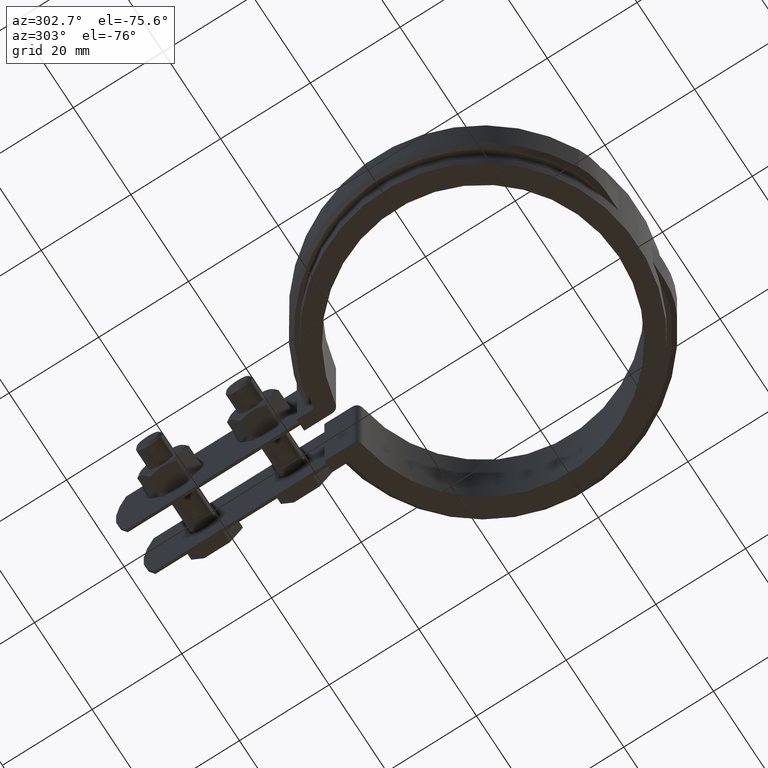
[diagram: clean part render]
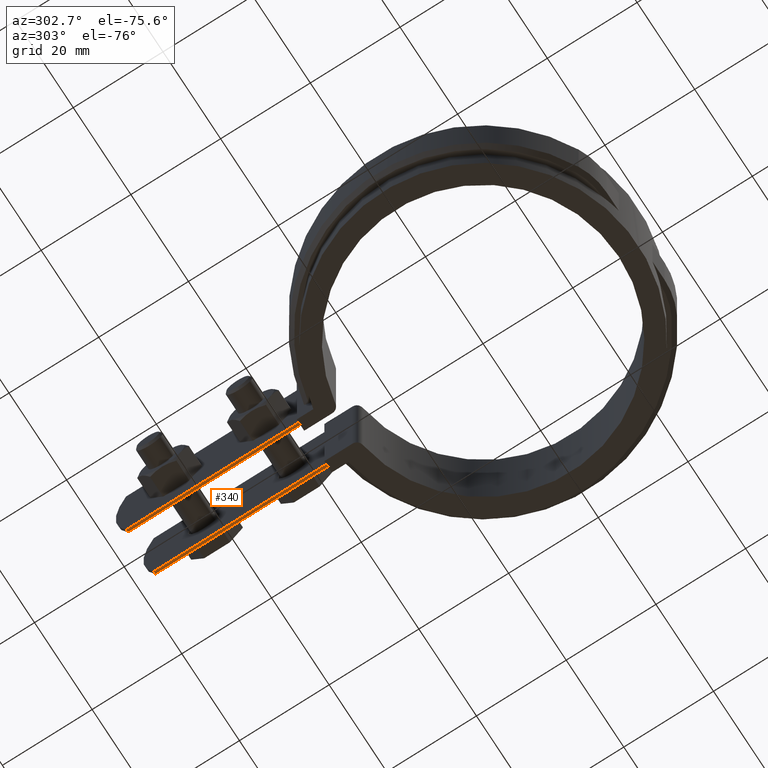
[diagram: same view with one face highlighted and labeled with its STEP entity id]
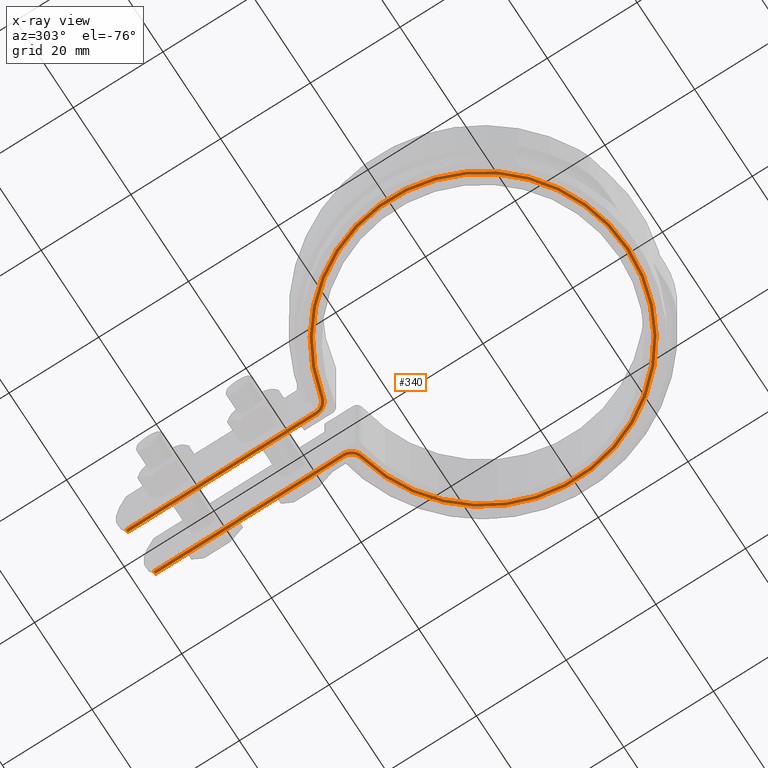
[diagram: x-ray of the same camera — body ghosted, the highlighted face saturated]
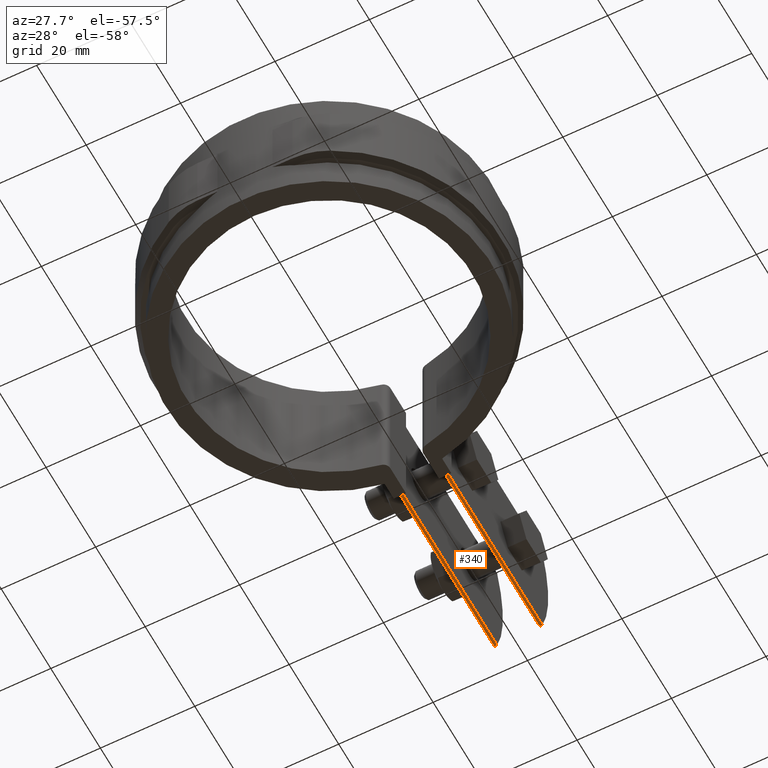
[diagram: same view with one face highlighted and labeled with its STEP entity id]
A machine part, auxiliary view. The second image highlights one B-rep face of the part: STEP entity #340.
The next image is the same camera in x-ray: the body ghosted, the highlighted face saturated — about 0% of this face is hidden behind the body in this view.
A second angle (auxiliary view) of the same face is appended — the face is thin or edge-on in the first view.
In plain terms, the highlighted planar face has unit normal (0, 0, 1).
Its self-contained STEP definition (entity closure, byte-faithful):
#340 = ADVANCED_FACE( '', ( #575 ), #576, .F. );
#575 = FACE_OUTER_BOUND( '', #1090, .T. );
#576 = PLANE( '', #1091 );
#1090 = EDGE_LOOP( '', ( #2251, #2252, #2253, #2254, #2255, #2256, #2257, #2258, #2259, #2260, #2261, #2262 ) );
#1091 = AXIS2_PLACEMENT_3D( '', #2263, #2264, #2265 );
#2251 = ORIENTED_EDGE( '', *, *, #4545, .F. );
#2252 = ORIENTED_EDGE( '', *, *, #4431, .F. );
#2253 = ORIENTED_EDGE( '', *, *, #4546, .F. );
#2254 = ORIENTED_EDGE( '', *, *, #4469, .F. );
#2255 = ORIENTED_EDGE( '', *, *, #4547, .F. );
#2256 = ORIENTED_EDGE( '', *, *, #4548, .F. );
#2257 = ORIENTED_EDGE( '', *, *, #4549, .F. );
#2258 = ORIENTED_EDGE( '', *, *, #4550, .T. );
#2259 = ORIENTED_EDGE( '', *, *, #4513, .T. );
#2260 = ORIENTED_EDGE( '', *, *, #4497, .T. );
#2261 = ORIENTED_EDGE( '', *, *, #4511, .T. );
#2262 = ORIENTED_EDGE( '', *, *, #4543, .T. );
#2263 = CARTESIAN_POINT( '', ( -4.50000000000000, 78.6315111874220, -25.0000000000000 ) );
#2264 = DIRECTION( '', ( 0.000000000000000, 0.000000000000000, 1.00000000000000 ) );
#2265 = DIRECTION( '', ( -6.12303176911189E-017, -1.00000000000000, 0.000000000000000 ) );
#4431 = EDGE_CURVE( '', #4951, #4953, #4954, .T. );
#4469 = EDGE_CURVE( '', #5024, #5026, #5027, .F. );
#4497 = EDGE_CURVE( '', #5076, #5074, #5077, .T. );
#4511 = EDGE_CURVE( '', #5074, #5101, #5102, .T. );
#4513 = EDGE_CURVE( '', #5104, #5076, #5105, .T. );
#4543 = EDGE_CURVE( '', #5101, #5149, #5151, .T. );
#4545 = EDGE_CURVE( '', #4953, #5149, #5154, .F. );
#4546 = EDGE_CURVE( '', #5026, #4951, #5155, .T. );
#4547 = EDGE_CURVE( '', #5156, #5024, #5157, .T. );
#4548 = EDGE_CURVE( '', #5158, #5156, #5159, .T. );
#4549 = EDGE_CURVE( '', #5160, #5158, #5161, .F. );
#4550 = EDGE_CURVE( '', #5160, #5104, #5162, .T. );
#4951 = VERTEX_POINT( '', #5818 );
#4953 = VERTEX_POINT( '', #5821 );
#4954 = LINE( '', #5822, #5823 );
#5024 = VERTEX_POINT( '', #6068 );
#5026 = VERTEX_POINT( '', #6071 );
#5027 = CIRCLE( '', #6072, 32.5500000000000 );
#5074 = VERTEX_POINT( '', #6347 );
#5076 = VERTEX_POINT( '', #6350 );
#5077 = CIRCLE( '', #6351, 31.9500000000000 );
#5101 = VERTEX_POINT( '', #6459 );
#5102 = CIRCLE( '', #6460, 3.00000000000000 );
#5104 = VERTEX_POINT( '', #6463 );
#5105 = CIRCLE( '', #6464, 3.00000000000000 );
#5149 = VERTEX_POINT( '', #6861 );
#5151 = LINE( '', #6863, #6864 );
#5154 = LINE( '', #6867, #6868 );
#5155 = CIRCLE( '', #6869, 2.40000000000000 );
#5156 = VERTEX_POINT( '', #6870 );
#5157 = CIRCLE( '', #6871, 2.40000000000000 );
#5158 = VERTEX_POINT( '', #6872 );
#5159 = LINE( '', #6873, #6874 );
#5160 = VERTEX_POINT( '', #6875 );
#5161 = LINE( '', #6876, #6877 );
#5162 = LINE( '', #6878, #6879 );
#5818 = CARTESIAN_POINT( '', ( 5.10000000000000, 34.1357949958690, -25.0000000000000 ) );
#5821 = CARTESIAN_POINT( '', ( 5.10000000000001, 76.3232532639770, -25.0000000000000 ) );
#5822 = CARTESIAN_POINT( '', ( 5.10000000000000, 34.1357949958690, -25.0000000000000 ) );
#5823 = VECTOR( '', #8966, 1000.00000000000 );
#6068 = CARTESIAN_POINT( '', ( -6.98497854077252, 31.7917060691141, -25.0000000000000 ) );
#6071 = CARTESIAN_POINT( '', ( 6.98497854077251, 31.7917060691141, -25.0000000000000 ) );
#6072 = AXIS2_PLACEMENT_3D( '', #9017, #9018, #9019 );
#6347 = CARTESIAN_POINT( '', ( 6.85622317596565, 31.2056838374254, -25.0000000000000 ) );
#6350 = CARTESIAN_POINT( '', ( -6.85622317596565, 31.2056838374254, -25.0000000000000 ) );
#6351 = AXIS2_PLACEMENT_3D( '', #9045, #9046, #9047 );
#6459 = CARTESIAN_POINT( '', ( 4.50000000000000, 34.1357949958690, -25.0000000000000 ) );
#6460 = AXIS2_PLACEMENT_3D( '', #9064, #9065, #9066 );
#6463 = CARTESIAN_POINT( '', ( -4.50000000000000, 34.1357949958690, -25.0000000000000 ) );
#6464 = AXIS2_PLACEMENT_3D( '', #9068, #9069, #9070 );
#6861 = CARTESIAN_POINT( '', ( 4.50000000000001, 76.3232532639770, -25.0000000000000 ) );
#6863 = CARTESIAN_POINT( '', ( 4.50000000000000, 34.1357949958690, -25.0000000000000 ) );
#6864 = VECTOR( '', #9085, 1000.00000000000 );
#6867 = CARTESIAN_POINT( '', ( -103.052142142673, 76.3232532639770, -25.0000000000000 ) );
#6868 = VECTOR( '', #9089, 1000.00000000000 );
#6869 = AXIS2_PLACEMENT_3D( '', #9090, #9091, #9092 );
#6870 = CARTESIAN_POINT( '', ( -5.10000000000000, 34.1357949958690, -25.0000000000000 ) );
#6871 = AXIS2_PLACEMENT_3D( '', #9093, #9094, #9095 );
#6872 = CARTESIAN_POINT( '', ( -5.09999999999999, 76.3232532639770, -25.0000000000000 ) );
#6873 = CARTESIAN_POINT( '', ( -5.10000000000000, 78.6315111874220, -25.0000000000000 ) );
#6874 = VECTOR( '', #9096, 1000.00000000000 );
#6875 = CARTESIAN_POINT( '', ( -4.49999999999999, 76.3232532639770, -25.0000000000000 ) );
#6876 = CARTESIAN_POINT( '', ( -103.052142142673, 76.3232532639770, -25.0000000000000 ) );
#6877 = VECTOR( '', #9097, 1000.00000000000 );
#6878 = CARTESIAN_POINT( '', ( -4.50000000000000, 78.6315111874220, -25.0000000000000 ) );
#6879 = VECTOR( '', #9098, 1000.00000000000 );
#8966 = DIRECTION( '', ( 6.12303176911189E-017, 1.00000000000000, 0.000000000000000 ) );
#9017 = CARTESIAN_POINT( '', ( 0.000000000000000, 0.000000000000000, -25.0000000000000 ) );
#9018 = DIRECTION( '', ( 0.000000000000000, 0.000000000000000, -1.00000000000000 ) );
#9019 = DIRECTION( '', ( -1.00000000000000, 0.000000000000000, 0.000000000000000 ) );
#9045 = CARTESIAN_POINT( '', ( 0.000000000000000, 0.000000000000000, -25.0000000000000 ) );
#9046 = DIRECTION( '', ( 0.000000000000000, 0.000000000000000, 1.00000000000000 ) );
#9047 = DIRECTION( '', ( 1.00000000000000, -6.12303176911189E-017, 0.000000000000000 ) );
#9064 = CARTESIAN_POINT( '', ( 7.50000000000000, 34.1357949958690, -25.0000000000000 ) );
#9065 = DIRECTION( '', ( 0.000000000000000, 0.000000000000000, -1.00000000000000 ) );
#9066 = DIRECTION( '', ( -1.00000000000000, 6.12303176911189E-017, 0.000000000000000 ) );
#9068 = CARTESIAN_POINT( '', ( -7.50000000000000, 34.1357949958690, -25.0000000000000 ) );
#9069 = DIRECTION( '', ( 0.000000000000000, 0.000000000000000, -1.00000000000000 ) );
#9070 = DIRECTION( '', ( 1.00000000000000, -6.12303176911189E-017, 0.000000000000000 ) );
#9085 = DIRECTION( '', ( 6.12303176911189E-017, 1.00000000000000, 0.000000000000000 ) );
#9089 = DIRECTION( '', ( 1.00000000000000, -6.12303176911189E-017, -6.16297582203915E-033 ) );
#9090 = CARTESIAN_POINT( '', ( 7.50000000000000, 34.1357949958690, -25.0000000000000 ) );
#9091 = DIRECTION( '', ( 0.000000000000000, 0.000000000000000, -1.00000000000000 ) );
#9092 = DIRECTION( '', ( -1.00000000000000, 0.000000000000000, 0.000000000000000 ) );
#9093 = CARTESIAN_POINT( '', ( -7.50000000000000, 34.1357949958690, -25.0000000000000 ) );
#9094 = DIRECTION( '', ( 0.000000000000000, 0.000000000000000, -1.00000000000000 ) );
#9095 = DIRECTION( '', ( -1.00000000000000, 0.000000000000000, 0.000000000000000 ) );
#9096 = DIRECTION( '', ( -6.12303176911189E-017, -1.00000000000000, 0.000000000000000 ) );
#9097 = DIRECTION( '', ( 1.00000000000000, -6.12303176911189E-017, -6.16297582203915E-033 ) );
#9098 = DIRECTION( '', ( -6.12303176911189E-017, -1.00000000000000, 0.000000000000000 ) );